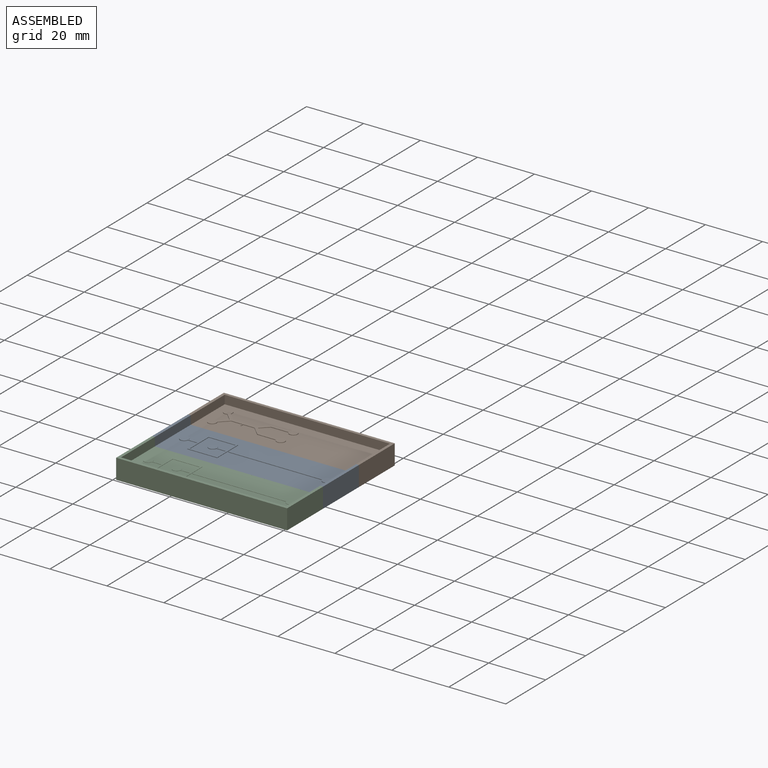
[diagram: assembled view]
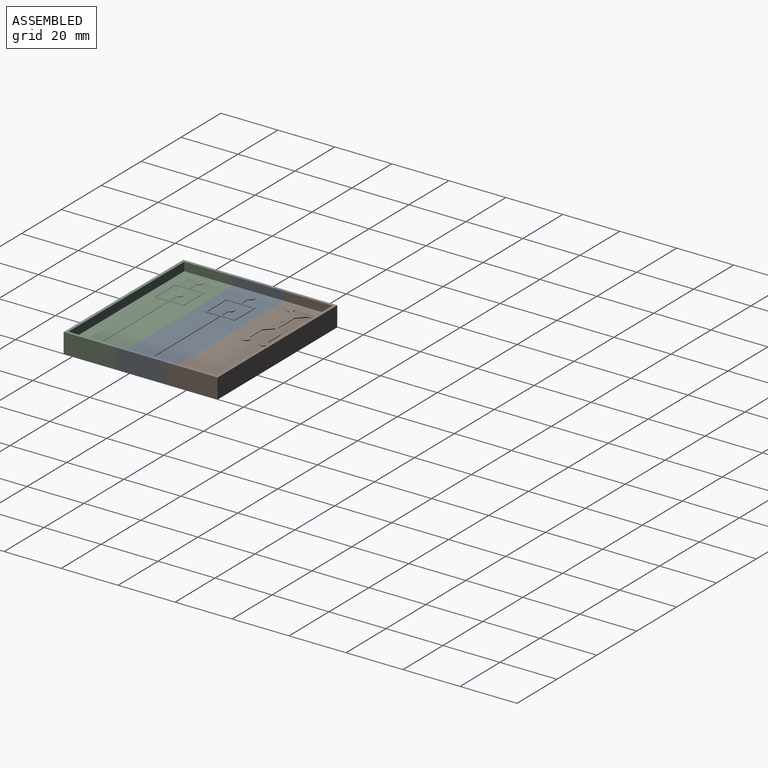
[diagram: assembled view, second angle]
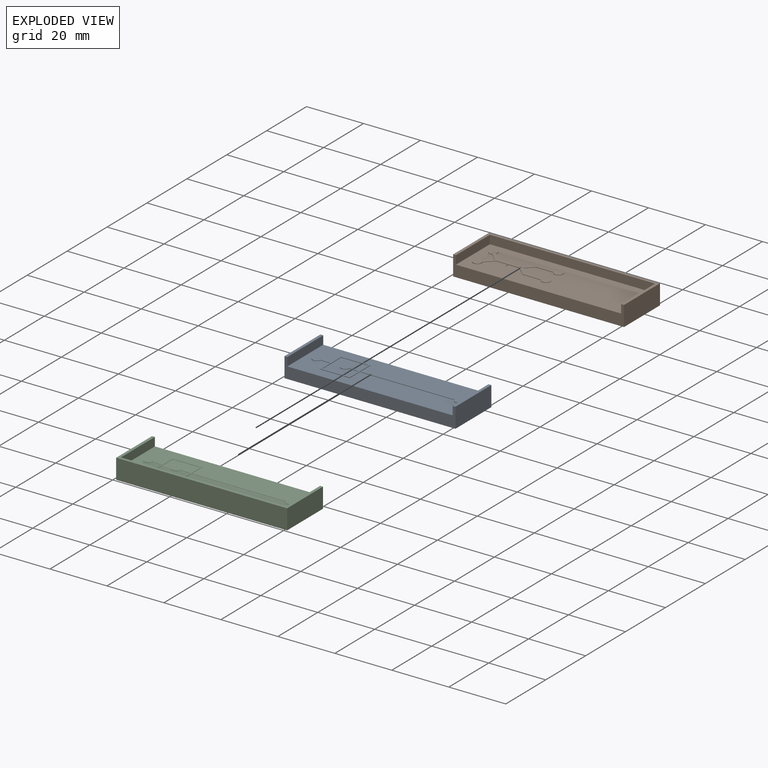
[diagram: exploded view]
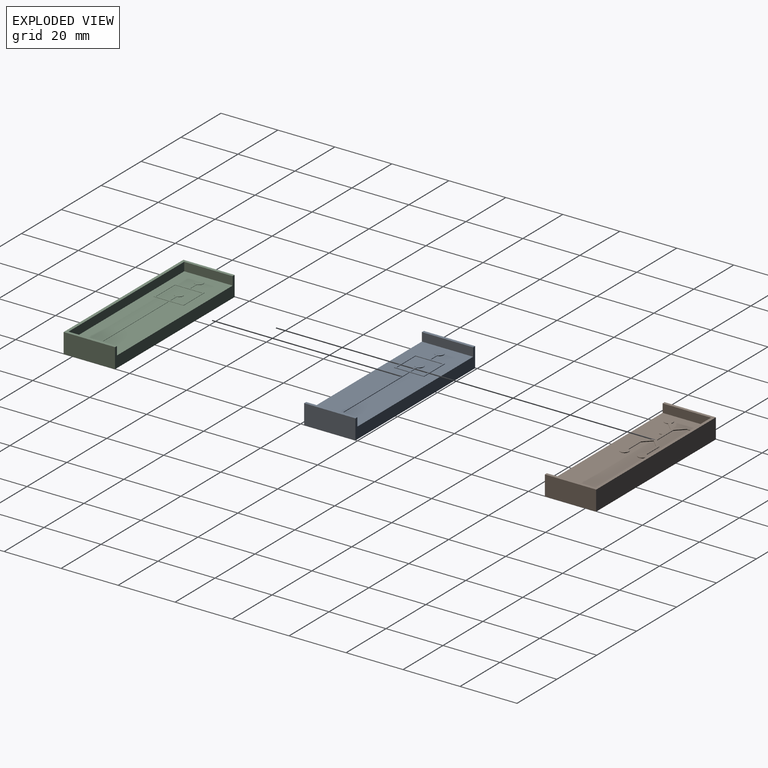
[diagram: exploded view, second angle]
ASSEMBLY  parts=3 mates=2
PART A: 36 faces, bbox 60x18x7 mm
  f0: plane 58.02x18mm, normal (0,0,1), area 901.8mm2, adj f2,f4,f6,f7,f8,f9,f10,f11
  f1: plane 18x7mm, normal (1,0,0), area 126mm2, adj f2,f4,f5,f35
  f2: plane 60x7mm, normal (0,1,0), area 246mm2, adj f0,f1,f3,f5,f32,f33,f34,f35
  f3: plane 18x7mm, normal (-1,0,0), area 126mm2, adj f2,f4,f5,f33
  f4: plane 60x7mm, normal (0,-1,0), area 246mm2, adj f0,f1,f3,f5,f32,f33,f34,f35
  f5: plane 60x18mm, normal (0,0,-1), area 1080mm2, adj f1,f2,f3,f4
  f6: plane 5.15x0.2mm, normal (1,0,0), area 1mm2, adj f0,f7,f29,f30
  f7: plane 0.5x0.2mm, normal (0,-1,0), area 0.1mm2, adj f0,f6,f8,f30
  f8: plane 0.2x0.15mm, normal (-1,0,0), area 0mm2, adj f0,f7,f9,f30
  f9: plane 32.77x0.2mm, normal (0,-1,0), area 6.6mm2, adj f0,f8,f10,f30
  f10: cylinder r=1.5mm len=3mm, axis (0,0,-1), area 1.8mm2, adj f0,f9,f11,f30
  f11: plane 32.77x0.2mm, normal (0,1,0), area 6.6mm2, adj f0,f10,f12,f30
  f12: plane 0.2x0.15mm, normal (-1,0,0), area 0mm2, adj f0,f11,f13,f30
  f13: plane 0.5x0.2mm, normal (0,1,0), area 0.1mm2, adj f0,f12,f14,f30
  f14: plane 5.15x0.2mm, normal (1,0,0), area 1mm2, adj f0,f13,f15,f30
  f15: plane 10.5x0.2mm, normal (0,1,0), area 2.1mm2, adj f0,f14,f16,f30
  f16: plane 5x0.2mm, normal (-1,0,0), area 1mm2, adj f0,f15,f17,f30
  f17: plane 3.27x0.2mm, normal (0,1,0), area 0.7mm2, adj f0,f16,f18,f30
  f18: cylinder r=1.5mm len=3mm, axis (0,0,-1), area 1.8mm2, adj f0,f17,f19,f30
  f19: plane 3.27x0.2mm, normal (0,-1,0), area 0.7mm2, adj f0,f18,f20,f30
  f20: plane 5x0.2mm, normal (-1,0,0), area 1mm2, adj f0,f19,f29,f30
  f21: plane 4.5x0.2mm, normal (-1,0,0), area 0.9mm2, adj f22,f28,f30,f31
  f22: plane 9.5x0.2mm, normal (0,1,0), area 1.9mm2, adj f21,f23,f30,f31
  f23: plane 9.5x0.2mm, normal (1,0,0), area 1.9mm2, adj f22,f24,f30,f31
  f24: plane 9.5x0.2mm, normal (0,-1,0), area 1.9mm2, adj f23,f25,f30,f31
  f25: plane 4.5x0.2mm, normal (-1,0,0), area 0.9mm2, adj f24,f26,f30,f31
  f26: plane 3.27x0.2mm, normal (0,1,0), area 0.7mm2, adj f25,f27,f30,f31
  f27: cylinder r=1.5mm len=3mm, axis (0,0,-1), area 1.8mm2, adj f26,f28,f30,f31
  f28: plane 3.27x0.2mm, normal (0,-1,0), area 0.7mm2, adj f21,f27,f30,f31
  f29: plane 10.5x0.2mm, normal (0,-1,0), area 2.1mm2, adj f0,f6,f20,f30
  f30: plane 53x10.5mm, normal (0,0,1), area 60.9mm2, adj f6,f7,f8,f9,f10,f11,f12,f13
  f31: plane 9.5x9.5mm, normal (0,0,1), area 81.6mm2, adj f21,f22,f23,f24,f25,f26,f27,f28
  f32: plane 18x3mm, normal (1,0,0), area 54mm2, adj f0,f2,f4,f33
  f33: plane 18x0.99mm, normal (0,0,1), area 17.9mm2, adj f2,f3,f4,f32
  f34: plane 18x3mm, normal (-1,0,0), area 54mm2, adj f0,f2,f4,f35
  f35: plane 18x0.99mm, normal (0,0,1), area 17.9mm2, adj f1,f2,f4,f34
PART B: 35 faces, bbox 60x18x7 mm
  f0: plane 58x17mm, normal (0,0,1), area 920.1mm2, adj f4,f6,f7,f8,f9,f10,f11,f12
  f1: plane 18x7mm, normal (1,0,0), area 126mm2, adj f2,f4,f5,f34
  f2: plane 60x7mm, normal (0,1,0), area 420mm2, adj f1,f3,f5,f34
  f3: plane 18x7mm, normal (-1,0,0), area 126mm2, adj f2,f4,f5,f34
  f4: plane 60x7mm, normal (0,-1,0), area 246mm2, adj f0,f1,f3,f5,f31,f33,f34
  f5: plane 60x18mm, normal (0,0,-1), area 1080mm2, adj f1,f2,f3,f4
  f6: plane 2.85x2.85mm, normal (0.71,0.71,0), area 0.8mm2, adj f0,f7,f29,f30
  f7: cylinder r=1.5mm len=3mm, axis (0,0,-1), area 1.7mm2, adj f0,f6,f8,f30
  f8: plane 2.65x2.65mm, normal (-0.71,-0.71,0), area 0.7mm2, adj f0,f7,f9,f30
  f9: plane 2.65x2.65mm, normal (-0.71,0.71,0), area 0.7mm2, adj f0,f8,f10,f30
  f10: cylinder r=1.5mm len=3mm, axis (0,0,-1), area 1.7mm2, adj f0,f9,f11,f30
  f11: plane 2.85x2.85mm, normal (0.71,-0.71,0), area 0.8mm2, adj f0,f10,f12,f30
  f12: plane 4x0.2mm, normal (0,-1,0), area 0.8mm2, adj f0,f11,f13,f30
  f13: plane 1x0.2mm, normal (-1,0,0), area 0.2mm2, adj f0,f12,f14,f30
  f14: plane 0.2x0.2mm, normal (0,-1,0), area 0mm2, adj f0,f13,f15,f30
  f15: plane 1x0.2mm, normal (1,0,0), area 0.2mm2, adj f0,f14,f16,f30
  f16: plane 4x0.2mm, normal (0,-1,0), area 0.8mm2, adj f0,f15,f17,f30
  f17: plane 2.85x2.85mm, normal (-0.71,-0.71,0), area 0.8mm2, adj f0,f16,f18,f30
  f18: cylinder r=1mm len=0.71mm, axis (0,0,-1), area 0.2mm2, adj f0,f17,f19,f30
  f19: plane 6.12x0.2mm, normal (0,-1,0), area 1.2mm2, adj f0,f18,f20,f30
  f20: cylinder r=1.5mm len=3mm, axis (0,0,-1), area 1.7mm2, adj f0,f19,f21,f30
  f21: plane 6.12x0.2mm, normal (0,1,0), area 1.2mm2, adj f0,f20,f22,f30
  f22: plane 2.65x2.65mm, normal (0.71,0.71,0), area 0.7mm2, adj f0,f21,f23,f30
  f23: plane 2.65x2.65mm, normal (0.71,-0.71,0), area 0.7mm2, adj f0,f22,f24,f30
  f24: plane 6.12x0.2mm, normal (0,-1,0), area 1.2mm2, adj f0,f23,f25,f30
  f25: cylinder r=1.5mm len=3mm, axis (0,0,-1), area 1.7mm2, adj f0,f24,f26,f30
  f26: plane 6.12x0.2mm, normal (0,1,0), area 1.2mm2, adj f0,f25,f27,f30
  f27: cylinder r=1mm len=0.71mm, axis (0,0,-1), area 0.2mm2, adj f0,f26,f28,f30
  f28: plane 2.85x2.85mm, normal (-0.71,0.71,0), area 0.8mm2, adj f0,f27,f29,f30
  f29: plane 8.2x0.2mm, normal (0,1,0), area 1.6mm2, adj f0,f6,f28,f30
  f30: plane 26.5x11mm, normal (0,0,1), area 65.9mm2, adj f6,f7,f8,f9,f10,f11,f12,f13
  f31: plane 17x3mm, normal (1,0,0), area 51mm2, adj f0,f4,f32,f34
  f32: plane 58x3mm, normal (0,-1,0), area 174mm2, adj f0,f31,f33,f34
  f33: plane 17x3mm, normal (-1,0,0), area 51mm2, adj f0,f4,f32,f34
  f34: plane 60x18mm, normal (0,0,1), area 94mm2, adj f1,f2,f3,f4,f31,f32,f33
PART C: 36 faces, bbox 60x18x7 mm
  f0: plane 58x17mm, normal (0,0,1), area 843.6mm2, adj f2,f6,f7,f8,f9,f10,f11,f12
  f1: plane 18x7mm, normal (1,0,0), area 126mm2, adj f2,f4,f5,f35
  f2: plane 60x7mm, normal (0,1,0), area 246mm2, adj f0,f1,f3,f5,f32,f34,f35
  f3: plane 18x7mm, normal (-1,0,0), area 126mm2, adj f2,f4,f5,f35
  f4: plane 60x7mm, normal (0,-1,0), area 420mm2, adj f1,f3,f5,f35
  f5: plane 60x18mm, normal (0,0,-1), area 1080mm2, adj f1,f2,f3,f4
  f6: plane 5.2x0.1mm, normal (1,0,0), area 0.5mm2, adj f0,f7,f29,f30
  f7: plane 0.5x0.1mm, normal (0,-1,0), area 0.1mm2, adj f0,f6,f8,f30
  f8: plane 0.2x0.1mm, normal (-1,0,0), area 0mm2, adj f0,f7,f9,f30
  f9: plane 32.77x0.1mm, normal (0,-1,0), area 3.3mm2, adj f0,f8,f10,f30
  f10: cylinder r=1.5mm len=3mm, axis (0,0,-1), area 0.9mm2, adj f0,f9,f11,f30
  f11: plane 32.77x0.1mm, normal (0,1,0), area 3.3mm2, adj f0,f10,f12,f30
  f12: plane 0.2x0.1mm, normal (-1,0,0), area 0mm2, adj f0,f11,f13,f30
  f13: plane 0.5x0.1mm, normal (0,1,0), area 0.1mm2, adj f0,f12,f14,f30
  f14: plane 5.2x0.1mm, normal (1,0,0), area 0.5mm2, adj f0,f13,f15,f30
  f15: plane 10.5x0.1mm, normal (0,1,0), area 1.1mm2, adj f0,f14,f16,f30
  f16: plane 5x0.1mm, normal (-1,0,0), area 0.5mm2, adj f0,f15,f17,f30
  f17: plane 3.27x0.1mm, normal (0,1,0), area 0.3mm2, adj f0,f16,f18,f30
  f18: cylinder r=1.5mm len=3mm, axis (0,0,-1), area 0.9mm2, adj f0,f17,f19,f30
  f19: plane 3.27x0.1mm, normal (0,-1,0), area 0.3mm2, adj f0,f18,f20,f30
  f20: plane 5x0.1mm, normal (-1,0,0), area 0.5mm2, adj f0,f19,f29,f30
  f21: plane 4.5x0.1mm, normal (-1,0,0), area 0.5mm2, adj f22,f28,f30,f31
  f22: plane 9.5x0.1mm, normal (0,1,0), area 1mm2, adj f21,f23,f30,f31
  f23: plane 9.5x0.1mm, normal (1,0,0), area 1mm2, adj f22,f24,f30,f31
  f24: plane 9.5x0.1mm, normal (0,-1,0), area 1mm2, adj f23,f25,f30,f31
  f25: plane 4.5x0.1mm, normal (-1,0,0), area 0.5mm2, adj f24,f26,f30,f31
  f26: plane 3.27x0.1mm, normal (0,1,0), area 0.3mm2, adj f25,f27,f30,f31
  f27: cylinder r=1.5mm len=3mm, axis (0,0,-1), area 0.9mm2, adj f26,f28,f30,f31
  f28: plane 3.27x0.1mm, normal (0,-1,0), area 0.3mm2, adj f21,f27,f30,f31
  f29: plane 10.5x0.1mm, normal (0,-1,0), area 1.1mm2, adj f0,f6,f20,f30
  f30: plane 53x10.5mm, normal (0,0,1), area 60.9mm2, adj f6,f7,f8,f9,f10,f11,f12,f13
  f31: plane 9.5x9.5mm, normal (0,0,1), area 81.6mm2, adj f21,f22,f23,f24,f25,f26,f27,f28
  f32: plane 17x3mm, normal (-1,0,0), area 51mm2, adj f0,f2,f33,f35
  f33: plane 58x3mm, normal (0,1,0), area 174mm2, adj f0,f32,f34,f35
  f34: plane 17x3mm, normal (1,0,0), area 51mm2, adj f0,f2,f33,f35
  f35: plane 60x18mm, normal (0,0,1), area 94mm2, adj f1,f2,f3,f4,f32,f33,f34
PLACE A t=(-7.71,5.48,-12.11)mm
PLACE B t=(-7.71,23.48,-12.11)mm
PLACE C t=(-7.71,-12.52,-12.11)mm
MATE slider B.f4 <-> A.f2  axis (0,-1,0) through (-7.71,14.48,-10.03)mm
MATE revolute A.f4 <-> C.f2  axis (0,-1,0) through (-7.71,-3.52,-10.03)mm
